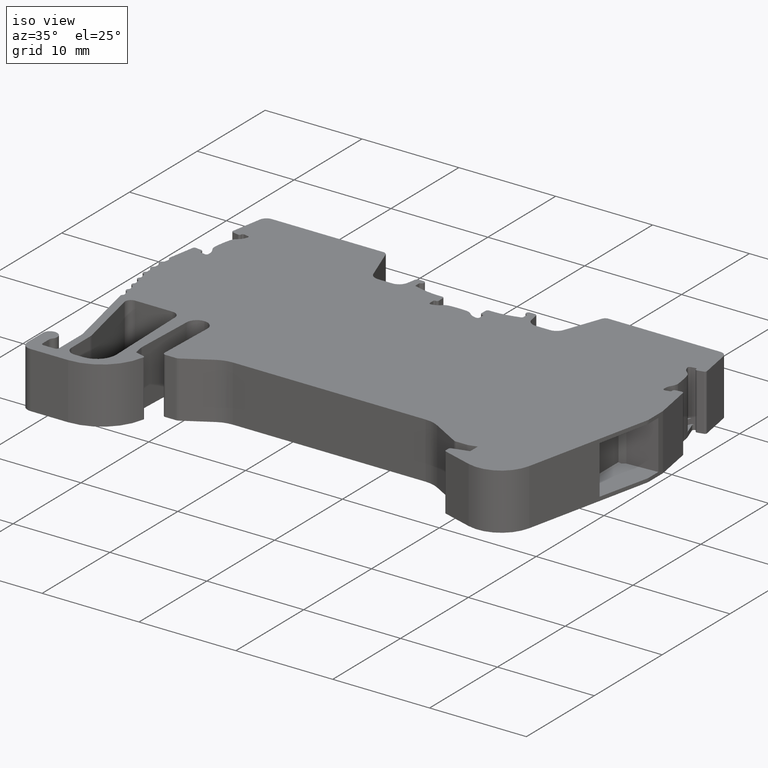
[diagram: clean part render]
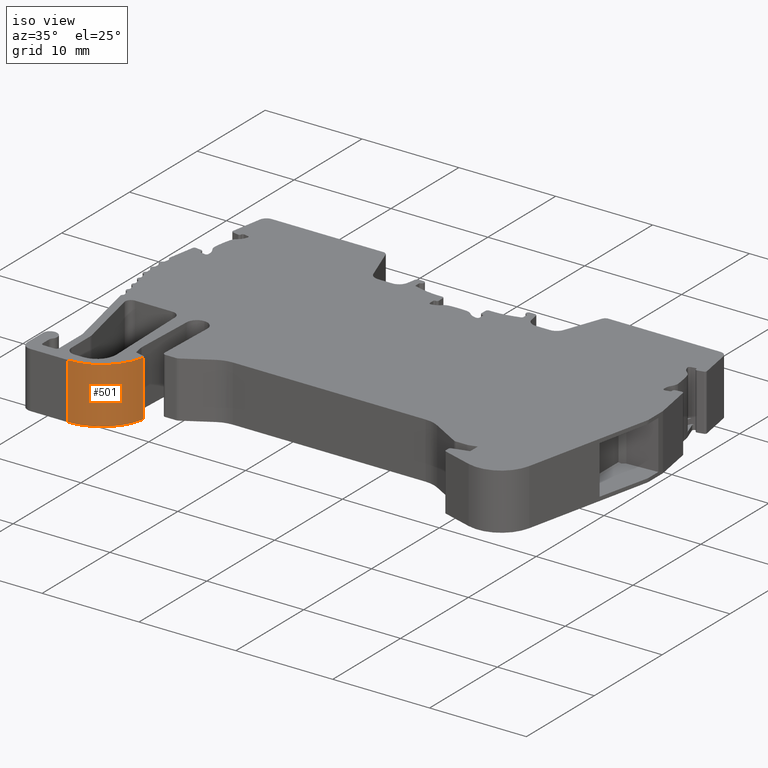
[diagram: same view with one face highlighted and labeled with its STEP entity id]
A machine part, iso view. The second image highlights one B-rep face of the part: STEP entity #501.
In plain terms, the highlighted cylindrical surface (partial cylindrical patch) has radius 5 mm, axis along (0, 0, -1).
Its self-contained STEP definition (entity closure, byte-faithful):
#46 = EDGE_CURVE ( 'NONE', #7101, #2980, #7817, .T. ) ;
#57 = CARTESIAN_POINT ( 'NONE',  ( 1913.294964260149982, 492.6674757026440261, -14.69999999999999929 ) ) ;
#279 = LINE ( 'NONE', #5545, #9580 ) ;
#501 = ADVANCED_FACE ( 'NONE', ( #2468 ), #748, .T. ) ;
#635 = VECTOR ( 'NONE', #5304, 1000.000000000000000 ) ;
#748 = CYLINDRICAL_SURFACE ( 'NONE', #1743, 5.000000000001891820 ) ;
#829 = EDGE_CURVE ( 'NONE', #6208, #9333, #279, .T. ) ;
#1494 = CIRCLE ( 'NONE', #8435, 5.000000000000337508 ) ;
#1743 = AXIS2_PLACEMENT_3D ( 'NONE', #4181, #10164, #5097 ) ;
#1992 = DIRECTION ( 'NONE',  ( -1.000000000000000000, 0.0000000000000000000, 0.0000000000000000000 ) ) ;
#2468 = FACE_OUTER_BOUND ( 'NONE', #3799, .T. ) ;
#2980 = VERTEX_POINT ( 'NONE', #4261 ) ;
#3689 = AXIS2_PLACEMENT_3D ( 'NONE', #57, #6237, #1992 ) ;
#3799 = EDGE_LOOP ( 'NONE', ( #6244, #8012, #5736, #10491 ) ) ;
#4181 = CARTESIAN_POINT ( 'NONE',  ( 1913.294964260149982, 492.6674757026440261, -8.900000000000000355 ) ) ;
#4261 = CARTESIAN_POINT ( 'NONE',  ( 1913.294960898124828, 487.6674757026430029, -14.69999999999999929 ) ) ;
#4585 = CARTESIAN_POINT ( 'NONE',  ( 1913.294960898124828, 487.6674757026440261, -8.900000000000000355 ) ) ;
#4689 = DIRECTION ( 'NONE',  ( 0.0000000000000000000, 0.0000000000000000000, -1.000000000000000000 ) ) ;
#5097 = DIRECTION ( 'NONE',  ( -1.000000000000000000, 0.0000000000000000000, 0.0000000000000000000 ) ) ;
#5304 = DIRECTION ( 'NONE',  ( 0.0000000000000000000, 0.0000000000000000000, -1.000000000000000000 ) ) ;
#5545 = CARTESIAN_POINT ( 'NONE',  ( 1918.211251765030056, 491.7563680419669936, -8.900000000000000355 ) ) ;
#5736 = ORIENTED_EDGE ( 'NONE', *, *, #829, .F. ) ;
#6208 = VERTEX_POINT ( 'NONE', #10147 ) ;
#6222 = CARTESIAN_POINT ( 'NONE',  ( 1913.294960898124828, 487.6674757026430029, -8.900000000000000355 ) ) ;
#6237 = DIRECTION ( 'NONE',  ( 0.0000000000000000000, 0.0000000000000000000, -1.000000000000000000 ) ) ;
#6244 = ORIENTED_EDGE ( 'NONE', *, *, #46, .T. ) ;
#6720 = DIRECTION ( 'NONE',  ( 1.000000000000000000, 0.0000000000000000000, 0.0000000000000000000 ) ) ;
#7101 = VERTEX_POINT ( 'NONE', #4585 ) ;
#7698 = CIRCLE ( 'NONE', #3689, 5.000000000000337508 ) ;
#7817 = LINE ( 'NONE', #6222, #635 ) ;
#8012 = ORIENTED_EDGE ( 'NONE', *, *, #9923, .F. ) ;
#8435 = AXIS2_PLACEMENT_3D ( 'NONE', #8549, #9284, #6720 ) ;
#8549 = CARTESIAN_POINT ( 'NONE',  ( 1913.294964260149982, 492.6674757026440261, -8.900000000000000355 ) ) ;
#8652 = CARTESIAN_POINT ( 'NONE',  ( 1918.211251765030056, 491.7563680419669936, -14.69999999999999929 ) ) ;
#9284 = DIRECTION ( 'NONE',  ( 0.0000000000000000000, 0.0000000000000000000, 1.000000000000000000 ) ) ;
#9333 = VERTEX_POINT ( 'NONE', #8652 ) ;
#9580 = VECTOR ( 'NONE', #4689, 1000.000000000000000 ) ;
#9923 = EDGE_CURVE ( 'NONE', #9333, #2980, #7698, .T. ) ;
#10147 = CARTESIAN_POINT ( 'NONE',  ( 1918.211251765030056, 491.7563680419669936, -8.900000000000000355 ) ) ;
#10164 = DIRECTION ( 'NONE',  ( 0.0000000000000000000, 0.0000000000000000000, -1.000000000000000000 ) ) ;
#10491 = ORIENTED_EDGE ( 'NONE', *, *, #10586, .F. ) ;
#10586 = EDGE_CURVE ( 'NONE', #7101, #6208, #1494, .T. ) ;